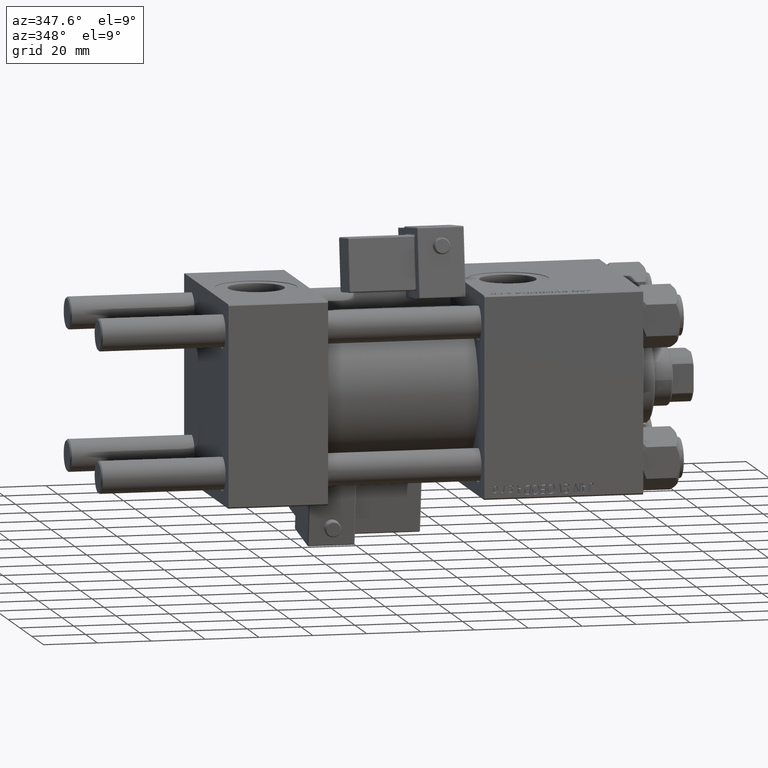
[diagram: clean part render]
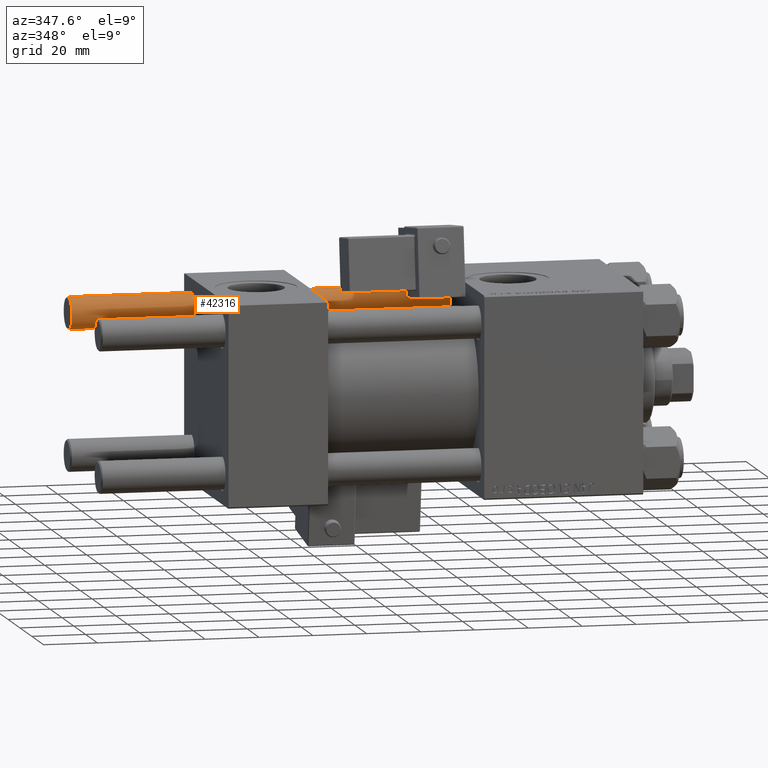
[diagram: same view with one face highlighted and labeled with its STEP entity id]
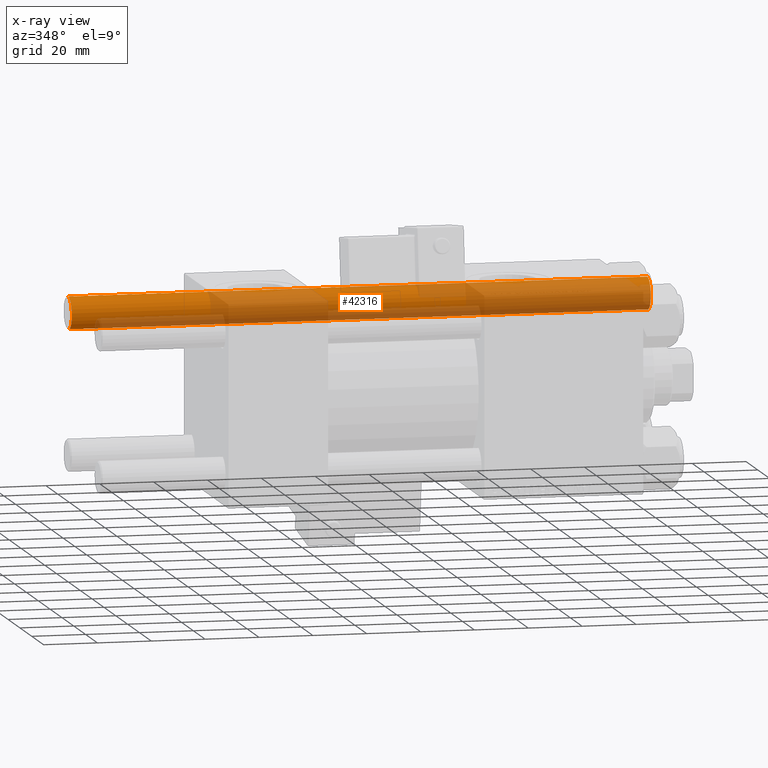
[diagram: x-ray of the same camera — body ghosted, the highlighted face saturated]
A machine part, auxiliary view. The second image highlights one B-rep face of the part: STEP entity #42316.
The next image is the same camera in x-ray: the body ghosted, the highlighted face saturated — about 67% of this face is hidden behind the body in this view.
In plain terms, the highlighted cylindrical surface (edge-blend (fillet) strip) has radius 6 mm, axis along (-1, -0, -0).
Its self-contained STEP definition (entity closure, byte-faithful):
#1908 = CIRCLE ( 'NONE', #30380, 6.000000000000000888 ) ;
#2965 = VERTEX_POINT ( 'NONE', #43511 ) ;
#3340 = CIRCLE ( 'NONE', #9227, 6.000000000000000888 ) ;
#4275 = FACE_OUTER_BOUND ( 'NONE', #25972, .T. ) ;
#4487 = CARTESIAN_POINT ( 'NONE',  ( 6.000000000000000888, 7.347880794884120722E-16, 215.5000000000000284 ) ) ;
#7321 = CARTESIAN_POINT ( 'NONE',  ( 6.000000000000000888, 7.347880794884120722E-16, 216.0000000000000000 ) ) ;
#9140 = DIRECTION ( 'NONE',  ( 1.000000000000000000, 0.000000000000000000, 0.000000000000000000 ) ) ;
#9227 = AXIS2_PLACEMENT_3D ( 'NONE', #45909, #33015, #9140 ) ;
#10530 = VECTOR ( 'NONE', #23309, 1000.000000000000000 ) ;
#14970 = VERTEX_POINT ( 'NONE', #50501 ) ;
#15903 = VERTEX_POINT ( 'NONE', #4487 ) ;
#16085 = CARTESIAN_POINT ( 'NONE',  ( 0.000000000000000000, 0.000000000000000000, 216.0000000000000000 ) ) ;
#16881 = DIRECTION ( 'NONE',  ( 0.000000000000000000, 0.000000000000000000, -1.000000000000000000 ) ) ;
#18254 = ORIENTED_EDGE ( 'NONE', *, *, #21264, .T. ) ;
#21264 = EDGE_CURVE ( 'NONE', #45763, #14970, #3340, .T. ) ;
#21965 = ORIENTED_EDGE ( 'NONE', *, *, #43585, .T. ) ;
#23309 = DIRECTION ( 'NONE',  ( -0.000000000000000000, -0.000000000000000000, -1.000000000000000000 ) ) ;
#25972 = EDGE_LOOP ( 'NONE', ( #30941, #35081, #21965, #18254 ) ) ;
#27403 = EDGE_CURVE ( 'NONE', #15903, #2965, #1908, .T. ) ;
#30380 = AXIS2_PLACEMENT_3D ( 'NONE', #40512, #16881, #30502 ) ;
#30502 = DIRECTION ( 'NONE',  ( 1.000000000000000000, 0.000000000000000000, 0.000000000000000000 ) ) ;
#30923 = LINE ( 'NONE', #47475, #10530 ) ;
#30941 = ORIENTED_EDGE ( 'NONE', *, *, #39682, .F. ) ;
#31579 = CYLINDRICAL_SURFACE ( 'NONE', #43350, 6.000000000000000888 ) ;
#32090 = DIRECTION ( 'NONE',  ( -0.000000000000000000, -0.000000000000000000, -1.000000000000000000 ) ) ;
#33015 = DIRECTION ( 'NONE',  ( -0.000000000000000000, -0.000000000000000000, 1.000000000000000000 ) ) ;
#33158 = VECTOR ( 'NONE', #39599, 1000.000000000000000 ) ;
#35081 = ORIENTED_EDGE ( 'NONE', *, *, #27403, .T. ) ;
#35527 = DIRECTION ( 'NONE',  ( -1.000000000000000000, 0.000000000000000000, 0.000000000000000000 ) ) ;
#35652 = LINE ( 'NONE', #7321, #33158 ) ;
#39599 = DIRECTION ( 'NONE',  ( -0.000000000000000000, -0.000000000000000000, -1.000000000000000000 ) ) ;
#39682 = EDGE_CURVE ( 'NONE', #15903, #14970, #35652, .T. ) ;
#40512 = CARTESIAN_POINT ( 'NONE',  ( 0.000000000000000000, 0.000000000000000000, 215.5000000000000284 ) ) ;
#42316 = ADVANCED_FACE ( 'NONE', ( #4275 ), #31579, .T. ) ;
#43350 = AXIS2_PLACEMENT_3D ( 'NONE', #16085, #32090, #35527 ) ;
#43511 = CARTESIAN_POINT ( 'NONE',  ( -6.000000000000000888, 0.000000000000000000, 215.5000000000000284 ) ) ;
#43585 = EDGE_CURVE ( 'NONE', #2965, #45763, #30923, .T. ) ;
#45763 = VERTEX_POINT ( 'NONE', #51543 ) ;
#45909 = CARTESIAN_POINT ( 'NONE',  ( 0.000000000000000000, 0.000000000000000000, 0.5000000000000004441 ) ) ;
#47475 = CARTESIAN_POINT ( 'NONE',  ( -6.000000000000000888, 0.000000000000000000, 216.0000000000000000 ) ) ;
#50501 = CARTESIAN_POINT ( 'NONE',  ( 6.000000000000000888, 7.347880794884120722E-16, 0.5000000000000004441 ) ) ;
#51543 = CARTESIAN_POINT ( 'NONE',  ( -6.000000000000000888, 0.000000000000000000, 0.5000000000000004441 ) ) ;